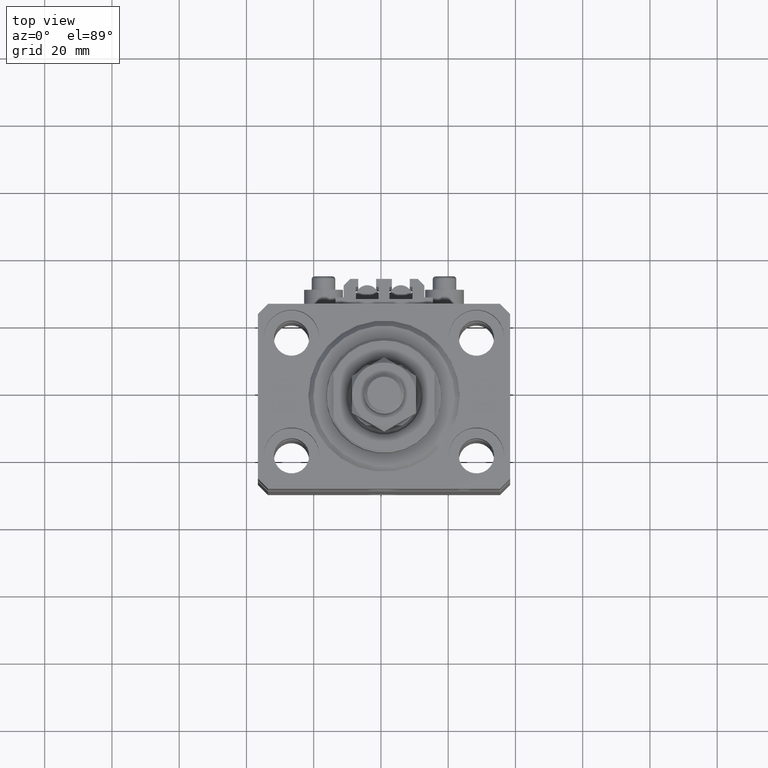
[diagram: clean part render]
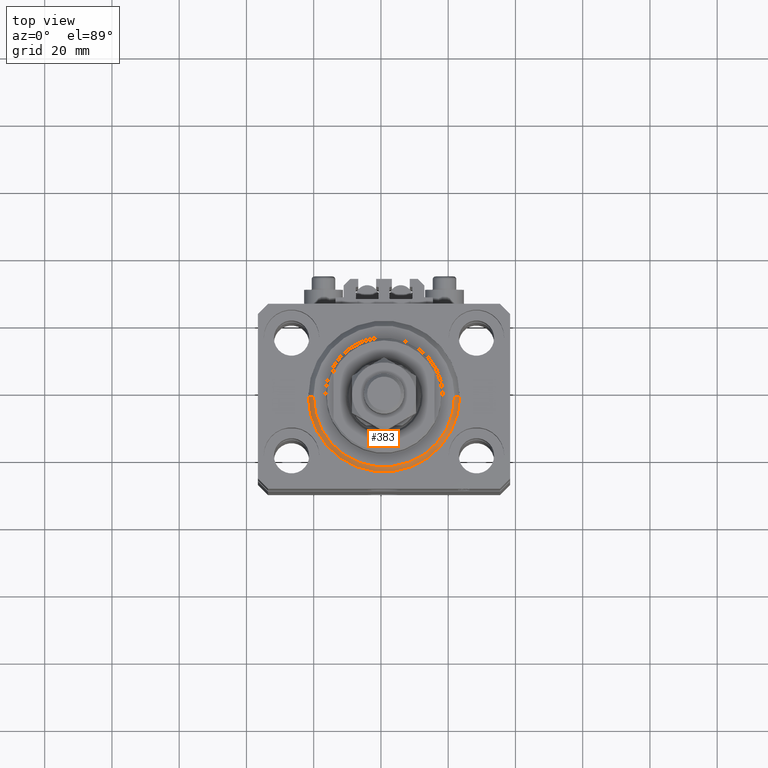
[diagram: same view with one face highlighted and labeled with its STEP entity id]
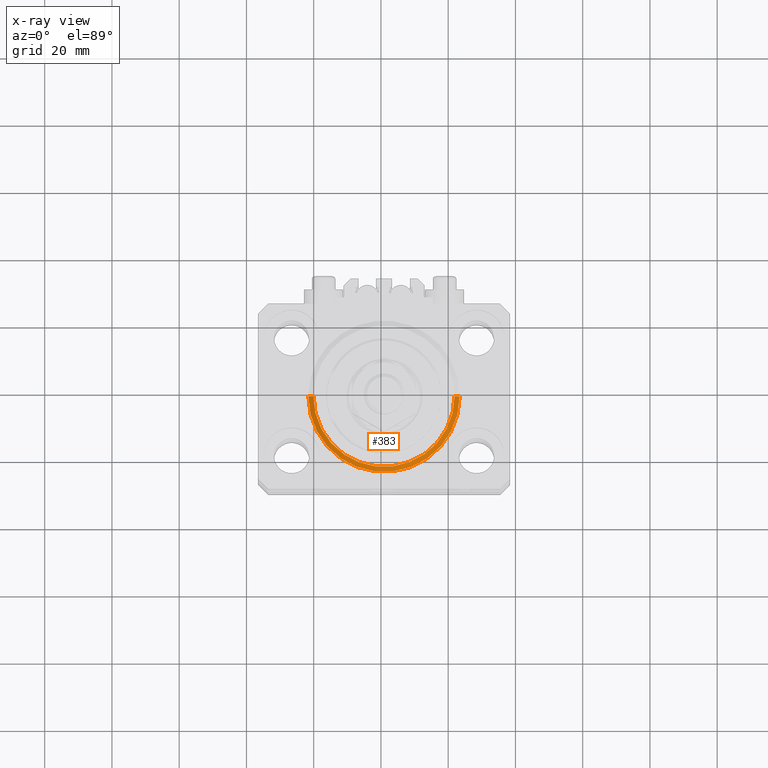
[diagram: x-ray of the same camera — body ghosted, the highlighted face saturated]
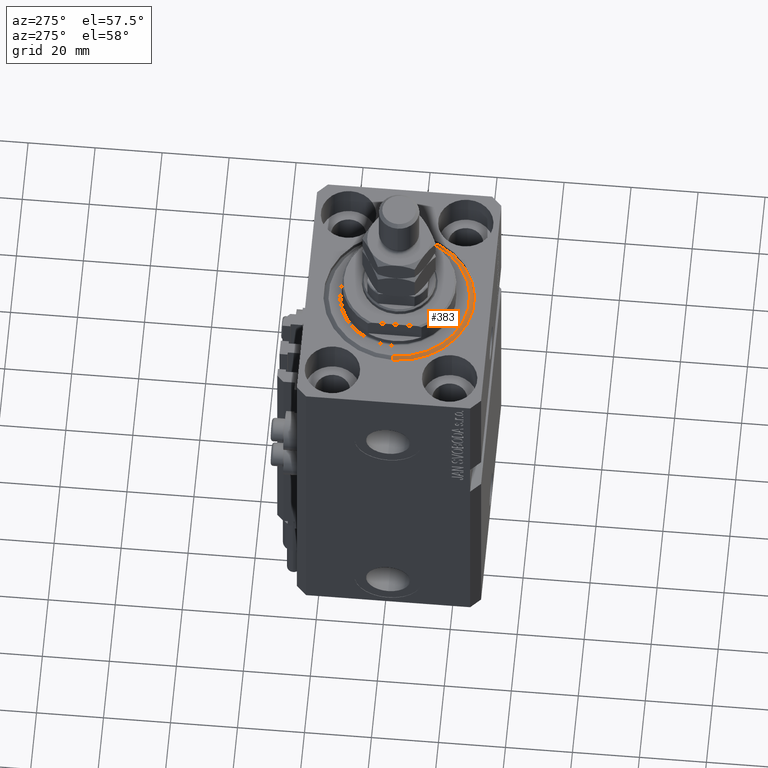
[diagram: same view with one face highlighted and labeled with its STEP entity id]
A machine part, top view. The second image highlights one B-rep face of the part: STEP entity #383.
The next image is the same camera in x-ray: the body ghosted, the highlighted face saturated — about 0% of this face is hidden behind the body in this view.
A second angle (auxiliary view) of the same face is appended — the face is thin or edge-on in the first view.
In plain terms, the highlighted conical surface has half-angle 45 deg.
Its self-contained STEP definition (entity closure, byte-faithful):
#383 = ADVANCED_FACE ( 'NONE', ( #36371 ), #1120, .T. ) ;
#1120 = CONICAL_SURFACE ( 'NONE', #29250, 22.50000000000000355, 0.7853981633974517207 ) ;
#1936 = CARTESIAN_POINT ( 'NONE',  ( 22.50000000000000355, 2.755455298081544383E-15, 1.500000000000039524 ) ) ;
#2571 = CARTESIAN_POINT ( 'NONE',  ( 0.000000000000000000, 0.000000000000000000, 1.500000000000039524 ) ) ;
#2650 = VERTEX_POINT ( 'NONE', #40744 ) ;
#3656 = DIRECTION ( 'NONE',  ( -0.7071067811865500152, 8.659560562354962440E-17, 0.7071067811865451302 ) ) ;
#9289 = EDGE_CURVE ( 'NONE', #2650, #39268, #38978, .T. ) ;
#10159 = CARTESIAN_POINT ( 'NONE',  ( -22.50000000000000355, 0.000000000000000000, 1.500000000000039524 ) ) ;
#10389 = DIRECTION ( 'NONE',  ( -0.000000000000000000, -0.000000000000000000, 1.000000000000000000 ) ) ;
#10833 = CARTESIAN_POINT ( 'NONE',  ( 0.000000000000000000, 0.000000000000000000, 0.000000000000000000 ) ) ;
#14086 = CIRCLE ( 'NONE', #15684, 22.50000000000000355 ) ;
#15091 = CARTESIAN_POINT ( 'NONE',  ( 22.50000000000000355, 0.000000000000000000, 1.500000000000039524 ) ) ;
#15684 = AXIS2_PLACEMENT_3D ( 'NONE', #2571, #10389, #37339 ) ;
#17927 = VERTEX_POINT ( 'NONE', #10159 ) ;
#18735 = ORIENTED_EDGE ( 'NONE', *, *, #33408, .F. ) ;
#22407 = ORIENTED_EDGE ( 'NONE', *, *, #31192, .F. ) ;
#23351 = DIRECTION ( 'NONE',  ( 0.7071067811865500152, 0.000000000000000000, 0.7071067811865451302 ) ) ;
#24747 = DIRECTION ( 'NONE',  ( 1.000000000000000000, 0.000000000000000000, 0.000000000000000000 ) ) ;
#25610 = EDGE_LOOP ( 'NONE', ( #22407, #18735, #46632, #42146 ) ) ;
#26167 = DIRECTION ( 'NONE',  ( -0.000000000000000000, -0.000000000000000000, -1.000000000000000000 ) ) ;
#27004 = CIRCLE ( 'NONE', #34262, 20.99999999999995381 ) ;
#27302 = CARTESIAN_POINT ( 'NONE',  ( -22.50000000000000355, 2.755455298081545172E-15, 1.500000000000039524 ) ) ;
#28611 = EDGE_CURVE ( 'NONE', #17927, #39268, #14086, .T. ) ;
#29250 = AXIS2_PLACEMENT_3D ( 'NONE', #33084, #43906, #24747 ) ;
#31084 = LINE ( 'NONE', #27302, #48732 ) ;
#31192 = EDGE_CURVE ( 'NONE', #38761, #17927, #31084, .T. ) ;
#33084 = CARTESIAN_POINT ( 'NONE',  ( 0.000000000000000000, 0.000000000000000000, 1.500000000000039524 ) ) ;
#33408 = EDGE_CURVE ( 'NONE', #2650, #38761, #27004, .T. ) ;
#34262 = AXIS2_PLACEMENT_3D ( 'NONE', #10833, #26167, #41562 ) ;
#36371 = FACE_OUTER_BOUND ( 'NONE', #25610, .T. ) ;
#37339 = DIRECTION ( 'NONE',  ( 1.000000000000000000, 0.000000000000000000, 0.000000000000000000 ) ) ;
#38761 = VERTEX_POINT ( 'NONE', #40903 ) ;
#38978 = LINE ( 'NONE', #15091, #39756 ) ;
#39268 = VERTEX_POINT ( 'NONE', #1936 ) ;
#39756 = VECTOR ( 'NONE', #23351, 1000.000000000000114 ) ;
#40744 = CARTESIAN_POINT ( 'NONE',  ( 20.99999999999995381, 0.000000000000000000, 0.000000000000000000 ) ) ;
#40903 = CARTESIAN_POINT ( 'NONE',  ( -20.99999999999995381, 2.663606788145490261E-15, 0.000000000000000000 ) ) ;
#41562 = DIRECTION ( 'NONE',  ( 1.000000000000000000, 0.000000000000000000, 0.000000000000000000 ) ) ;
#42146 = ORIENTED_EDGE ( 'NONE', *, *, #28611, .F. ) ;
#43906 = DIRECTION ( 'NONE',  ( -0.000000000000000000, -0.000000000000000000, 1.000000000000000000 ) ) ;
#46632 = ORIENTED_EDGE ( 'NONE', *, *, #9289, .T. ) ;
#48732 = VECTOR ( 'NONE', #3656, 1000.000000000000114 ) ;